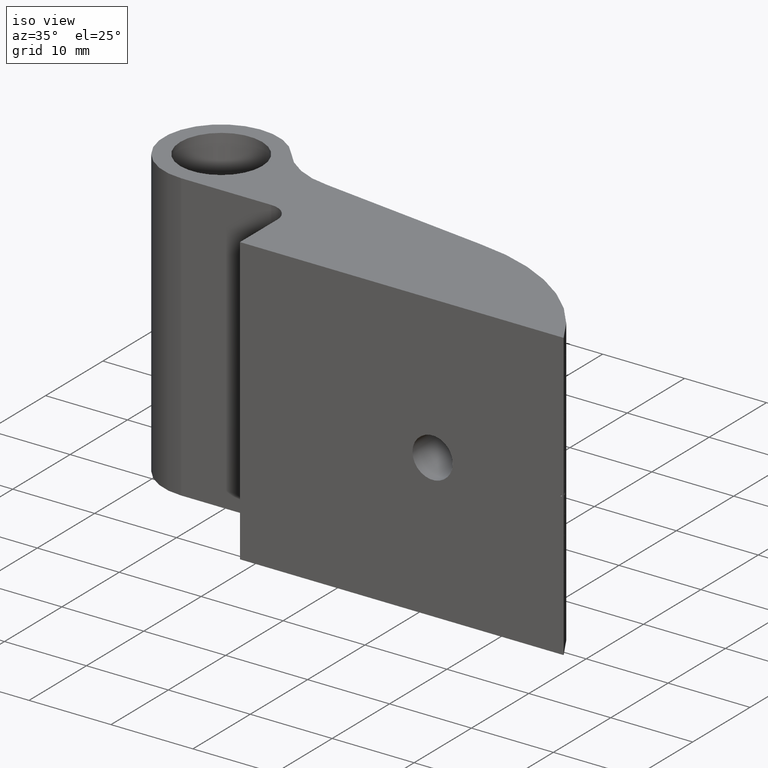
[diagram: clean part render]
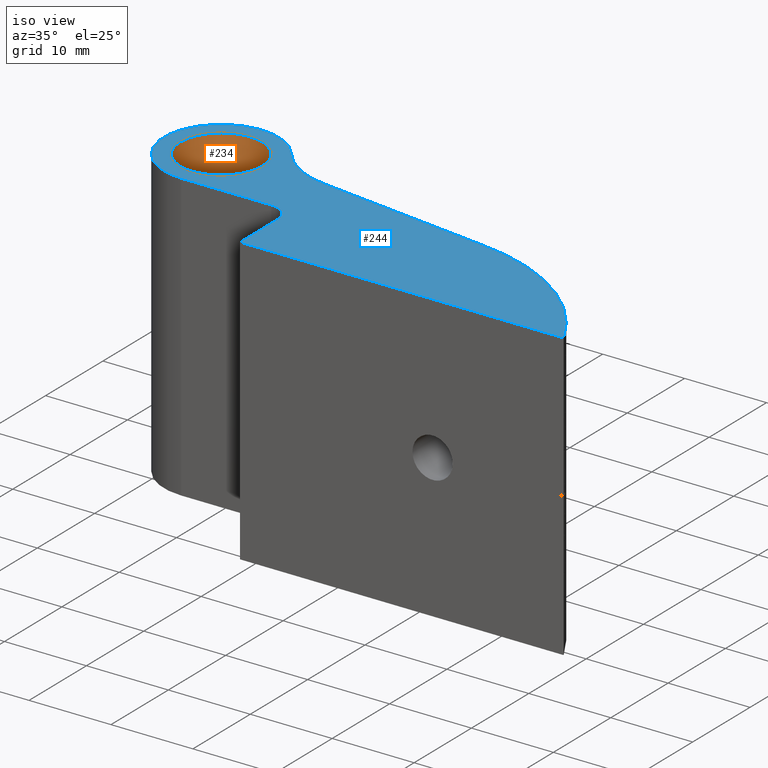
[diagram: same view with the hole feature highlighted: cylindrical wall and planar end face, labeled with their STEP entity ids]
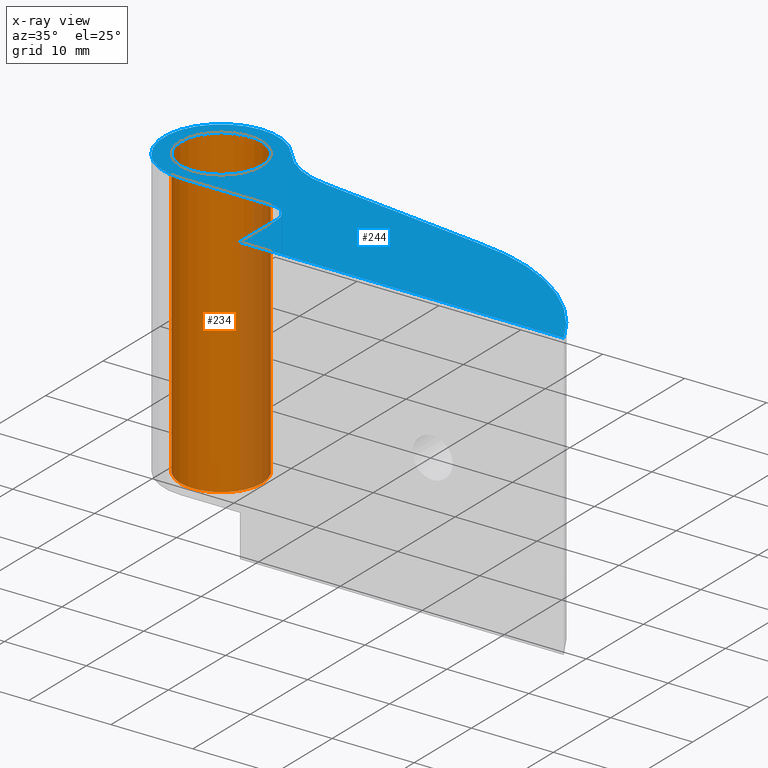
[diagram: x-ray of the same camera — body ghosted, the hole faces saturated]
A machine part, iso view. The highlighted faces form one hole feature of diameter 10 mm: the cylindrical wall (entity #234, orange) and its adjacent planar end face (entity #244, blue) — they share a circular edge in the B-rep.
The next image is the same camera in x-ray (body ghosted, the hole faces saturated) — the bore reads through the body.
Wall:
#56=FACE_BOUND('',#95,.T.);
#65=CIRCLE('',#254,5.);
#66=CIRCLE('',#255,5.);
#78=FACE_OUTER_BOUND('',#94,.T.);
#94=EDGE_LOOP('',(#169));
#95=EDGE_LOOP('',(#170));
#116=VERTEX_POINT('',#400);
#117=VERTEX_POINT('',#402);
#138=EDGE_CURVE('',#116,#116,#65,.T.);
#139=EDGE_CURVE('',#117,#117,#66,.T.);
#169=ORIENTED_EDGE('',*,*,#138,.F.);
#170=ORIENTED_EDGE('',*,*,#139,.F.);
#226=CYLINDRICAL_SURFACE('',#253,5.);
#234=ADVANCED_FACE('',(#78,#56),#226,.F.);
#253=AXIS2_PLACEMENT_3D('',#399,#288,#289);
#254=AXIS2_PLACEMENT_3D('',#401,#290,#291);
#255=AXIS2_PLACEMENT_3D('',#403,#292,#293);
#288=DIRECTION('center_axis',(0.,0.,1.));
#289=DIRECTION('ref_axis',(1.,0.,0.));
#290=DIRECTION('center_axis',(0.,0.,1.));
#291=DIRECTION('ref_axis',(1.,0.,0.));
#292=DIRECTION('center_axis',(0.,0.,-1.));
#293=DIRECTION('ref_axis',(1.,0.,0.));
#399=CARTESIAN_POINT('Origin',(-33.9999999999995,13.5,-55.6710325197064));
#400=CARTESIAN_POINT('',(-38.9999999999995,13.5,-17.5));
#401=CARTESIAN_POINT('Origin',(-33.9999999999995,13.5,-17.5));
#402=CARTESIAN_POINT('',(-28.9999999999995,13.5,17.5));
#403=CARTESIAN_POINT('Origin',(-33.9999999999995,13.5,17.5));
End face:
#20=LINE('',#425,#36);
#23=LINE('',#433,#39);
#27=LINE('',#445,#43);
#30=LINE('',#452,#46);
#36=VECTOR('',#311,6.5);
#39=VECTOR('',#320,10.9999999999994);
#43=VECTOR('',#334,20.8640507154188);
#46=VECTOR('',#343,39.5);
#52=PLANE('',#273);
#61=FACE_BOUND('',#110,.T.);
#66=CIRCLE('',#255,5.);
#71=CIRCLE('',#263,2.5);
#72=CIRCLE('',#266,7.);
#73=CIRCLE('',#268,10.);
#74=CIRCLE('',#271,24.5);
#88=FACE_OUTER_BOUND('',#109,.T.);
#109=EDGE_LOOP('',(#215,#216,#217,#218,#219,#220,#221,#222));
#110=EDGE_LOOP('',(#223));
#117=VERTEX_POINT('',#402);
#126=VERTEX_POINT('',#422);
#127=VERTEX_POINT('',#424);
#128=VERTEX_POINT('',#428);
#129=VERTEX_POINT('',#432);
#130=VERTEX_POINT('',#436);
#131=VERTEX_POINT('',#440);
#132=VERTEX_POINT('',#444);
#133=VERTEX_POINT('',#448);
#139=EDGE_CURVE('',#117,#117,#66,.T.);
#149=EDGE_CURVE('',#127,#126,#20,.T.);
#151=EDGE_CURVE('',#128,#127,#71,.T.);
#153=EDGE_CURVE('',#129,#128,#23,.T.);
#155=EDGE_CURVE('',#130,#129,#72,.T.);
#157=EDGE_CURVE('',#131,#130,#73,.T.);
#159=EDGE_CURVE('',#132,#131,#27,.T.);
#161=EDGE_CURVE('',#133,#132,#74,.T.);
#163=EDGE_CURVE('',#126,#133,#30,.T.);
#215=ORIENTED_EDGE('',*,*,#163,.T.);
#216=ORIENTED_EDGE('',*,*,#161,.T.);
#217=ORIENTED_EDGE('',*,*,#159,.T.);
#218=ORIENTED_EDGE('',*,*,#157,.T.);
#219=ORIENTED_EDGE('',*,*,#155,.T.);
#220=ORIENTED_EDGE('',*,*,#153,.T.);
#221=ORIENTED_EDGE('',*,*,#151,.T.);
#222=ORIENTED_EDGE('',*,*,#149,.T.);
#223=ORIENTED_EDGE('',*,*,#139,.T.);
#244=ADVANCED_FACE('',(#88,#61),#52,.T.);
#255=AXIS2_PLACEMENT_3D('',#403,#292,#293);
#263=AXIS2_PLACEMENT_3D('',#429,#315,#316);
#266=AXIS2_PLACEMENT_3D('',#437,#324,#325);
#268=AXIS2_PLACEMENT_3D('',#441,#329,#330);
#271=AXIS2_PLACEMENT_3D('',#449,#338,#339);
#273=AXIS2_PLACEMENT_3D('',#453,#344,#345);
#292=DIRECTION('center_axis',(0.,0.,-1.));
#293=DIRECTION('ref_axis',(1.,0.,0.));
#311=DIRECTION('',(0.,-1.,0.));
#315=DIRECTION('center_axis',(0.,0.,-1.));
#316=DIRECTION('ref_axis',(1.,0.,0.));
#320=DIRECTION('',(1.,0.,0.));
#324=DIRECTION('center_axis',(0.,0.,1.));
#325=DIRECTION('ref_axis',(-0.806562039309799,-0.591149453813854,0.));
#329=DIRECTION('center_axis',(0.,0.,-1.));
#330=DIRECTION('ref_axis',(-0.806562039309799,-0.591149453813855,0.));
#334=DIRECTION('',(-0.991568697709726,0.129582088740067,0.));
#338=DIRECTION('center_axis',(0.,0.,1.));
#339=DIRECTION('ref_axis',(-0.89362720381593,-0.448810005013394,0.));
#343=DIRECTION('',(1.,-1.0540092005935E-16,0.));
#344=DIRECTION('center_axis',(0.,0.,1.));
#345=DIRECTION('ref_axis',(1.,0.,0.));
#402=CARTESIAN_POINT('',(-28.9999999999995,13.5,17.5));
#403=CARTESIAN_POINT('Origin',(-33.9999999999995,13.5,17.5));
#422=CARTESIAN_POINT('',(-20.5,-2.5,17.5));
#424=CARTESIAN_POINT('',(-20.5,4.,17.5));
#425=CARTESIAN_POINT('',(-20.5,-2.5,17.5));
#428=CARTESIAN_POINT('',(-23.,6.5,17.5));
#429=CARTESIAN_POINT('Origin',(-23.,4.,17.5));
#432=CARTESIAN_POINT('',(-33.9999999999995,6.5,17.5));
#433=CARTESIAN_POINT('',(-23.,6.5,17.5));
#436=CARTESIAN_POINT('',(-28.3540657248309,17.638046176697,17.5));
#437=CARTESIAN_POINT('Origin',(-33.9999999999995,13.5,17.5));
#440=CARTESIAN_POINT('',(-21.1475886524639,13.5865154336048,17.5));
#441=CARTESIAN_POINT('Origin',(-20.2884453317329,23.5495407148355,17.5));
#444=CARTESIAN_POINT('',(-0.459449055626422,10.8829081623221,17.5));
#445=CARTESIAN_POINT('',(-21.1475886524639,13.5865154336048,17.5));
#448=CARTESIAN_POINT('',(19.,-2.5,17.5));
#449=CARTESIAN_POINT('Origin',(-2.89386649349029,-13.4958451228282,17.5));
#452=CARTESIAN_POINT('',(19.,-2.5,17.5));
#453=CARTESIAN_POINT('Origin',(-11.9526444164431,6.07996110615042,17.5));